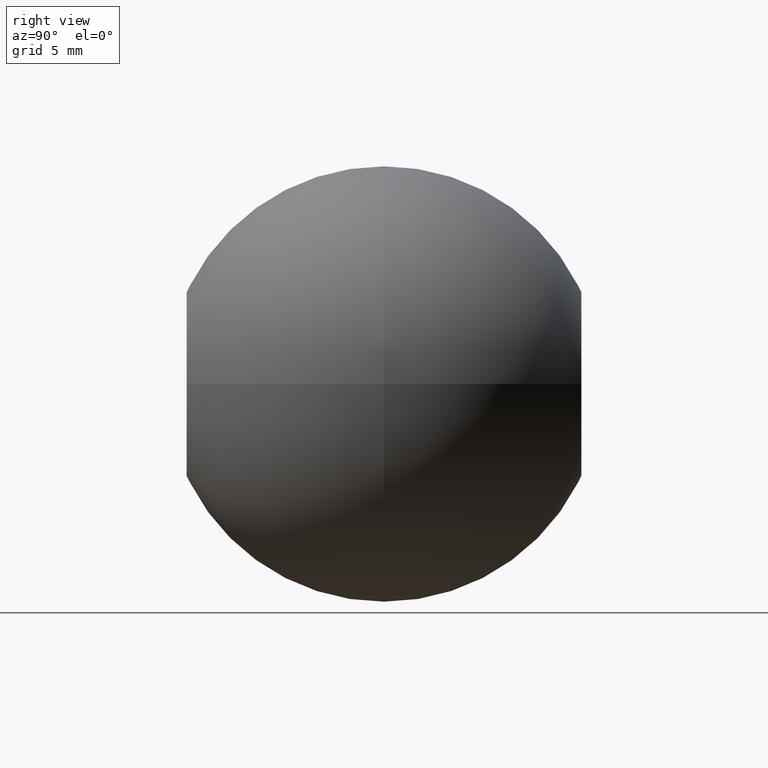
[diagram: clean part render]
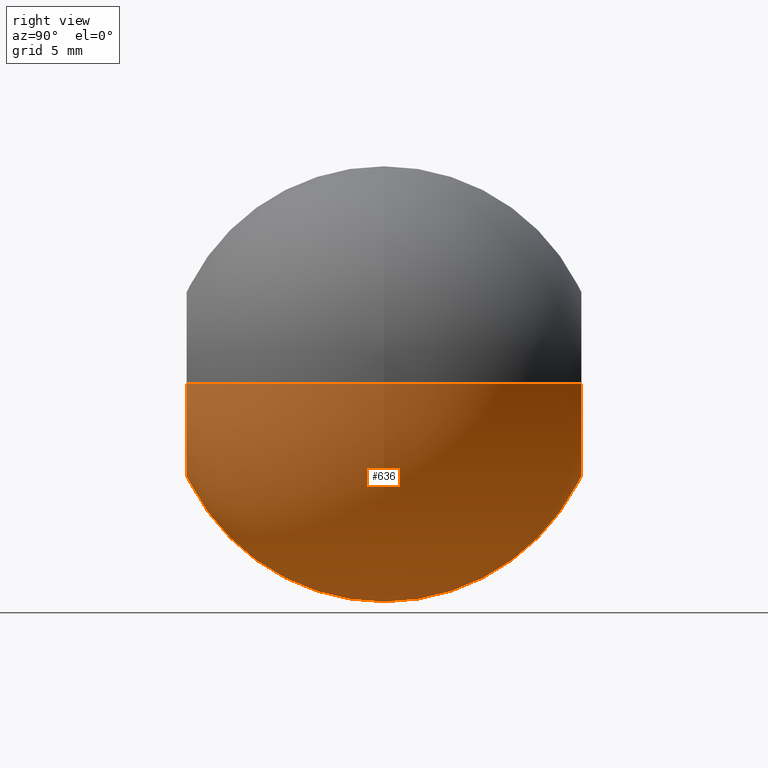
[diagram: same view with one face highlighted and labeled with its STEP entity id]
A machine part, right view. The second image highlights one B-rep face of the part: STEP entity #636.
In plain terms, the highlighted spherical surface has radius 15 mm.
Its self-contained STEP definition (entity closure, byte-faithful):
#130 = DIRECTION ( 'NONE',  ( 0.0000000000000000000, 1.000000000000000000, 0.0000000000000000000 ) ) ;
#188 = EDGE_CURVE ( 'NONE', #11695, #10987, #1803, .T. ) ;
#251 = CARTESIAN_POINT ( 'NONE',  ( 0.0000000000000000000, 13.60064379610488300, 0.0000000000000000000 ) ) ;
#308 = CARTESIAN_POINT ( 'NONE',  ( 0.0000000000000000000, 0.0000000000000000000, 0.0000000000000000000 ) ) ;
#625 = VERTEX_POINT ( 'NONE', #3176 ) ;
#636 = ADVANCED_FACE ( 'NONE', ( #7690 ), #5486, .T. ) ;
#1018 = CARTESIAN_POINT ( 'NONE',  ( 1.836970198721029600E-015, -13.60064379610489000, -6.326332929231087500 ) ) ;
#1170 = DIRECTION ( 'NONE',  ( 0.0000000000000000000, 0.0000000000000000000, -1.000000000000000000 ) ) ;
#1218 = CARTESIAN_POINT ( 'NONE',  ( 0.0000000000000000000, 0.0000000000000000000, 0.0000000000000000000 ) ) ;
#1309 = EDGE_CURVE ( 'NONE', #2614, #3215, #7981, .T. ) ;
#1325 = CARTESIAN_POINT ( 'NONE',  ( 0.0000000000000000000, 13.60064379610488300, 0.0000000000000000000 ) ) ;
#1330 = CARTESIAN_POINT ( 'NONE',  ( 0.0000000000000000000, 0.0000000000000000000, 0.0000000000000000000 ) ) ;
#1371 = DIRECTION ( 'NONE',  ( -1.000000000000000000, 0.0000000000000000000, -1.224646799147353000E-016 ) ) ;
#1768 = EDGE_CURVE ( 'NONE', #625, #10987, #6068, .T. ) ;
#1803 = CIRCLE ( 'NONE', #2482, 15.00000000000000000 ) ;
#1968 = DIRECTION ( 'NONE',  ( 0.0000000000000000000, 1.000000000000000000, 0.0000000000000000000 ) ) ;
#2060 = CARTESIAN_POINT ( 'NONE',  ( 0.0000000000000000000, -13.60064379610489000, 0.0000000000000000000 ) ) ;
#2378 = ORIENTED_EDGE ( 'NONE', *, *, #1768, .T. ) ;
#2482 = AXIS2_PLACEMENT_3D ( 'NONE', #1218, #4071, #4984 ) ;
#2614 = VERTEX_POINT ( 'NONE', #1018 ) ;
#3080 = VERTEX_POINT ( 'NONE', #10716 ) ;
#3176 = CARTESIAN_POINT ( 'NONE',  ( 2.611722535933366500E-015, 13.60064379610488300, -6.326332929231102600 ) ) ;
#3215 = VERTEX_POINT ( 'NONE', #4504 ) ;
#3288 = AXIS2_PLACEMENT_3D ( 'NONE', #6755, #130, #7627 ) ;
#4071 = DIRECTION ( 'NONE',  ( 0.0000000000000000000, 0.0000000000000000000, 1.000000000000000000 ) ) ;
#4504 = CARTESIAN_POINT ( 'NONE',  ( -6.326332929231085700, -13.60064379610489000, -7.747523372123356500E-016 ) ) ;
#4984 = DIRECTION ( 'NONE',  ( 1.000000000000000000, 0.0000000000000000000, 0.0000000000000000000 ) ) ;
#5002 = EDGE_CURVE ( 'NONE', #11695, #2614, #9802, .T. ) ;
#5247 = DIRECTION ( 'NONE',  ( 0.0000000000000000000, 0.0000000000000000000, -1.000000000000000000 ) ) ;
#5486 = SPHERICAL_SURFACE ( 'NONE', #9174, 15.00000000000000000 ) ;
#6068 = CIRCLE ( 'NONE', #7429, 6.326332929231102600 ) ;
#6071 = DIRECTION ( 'NONE',  ( 0.0000000000000000000, 0.0000000000000000000, -1.000000000000000000 ) ) ;
#6731 = ORIENTED_EDGE ( 'NONE', *, *, #1309, .T. ) ;
#6755 = CARTESIAN_POINT ( 'NONE',  ( 0.0000000000000000000, -13.60064379610489000, 0.0000000000000000000 ) ) ;
#6876 = ORIENTED_EDGE ( 'NONE', *, *, #5002, .T. ) ;
#6949 = ORIENTED_EDGE ( 'NONE', *, *, #7763, .T. ) ;
#6973 = DIRECTION ( 'NONE',  ( -0.0000000000000000000, -1.000000000000000000, -0.0000000000000000000 ) ) ;
#7429 = AXIS2_PLACEMENT_3D ( 'NONE', #1325, #6973, #5247 ) ;
#7622 = CIRCLE ( 'NONE', #11211, 15.00000000000000000 ) ;
#7627 = DIRECTION ( 'NONE',  ( 0.0000000000000000000, 0.0000000000000000000, 1.000000000000000000 ) ) ;
#7676 = CIRCLE ( 'NONE', #9450, 6.326332929231102600 ) ;
#7690 = FACE_OUTER_BOUND ( 'NONE', #11656, .T. ) ;
#7763 = EDGE_CURVE ( 'NONE', #3080, #625, #7676, .T. ) ;
#7805 = DIRECTION ( 'NONE',  ( 1.224646799147353200E-016, 0.0000000000000000000, -1.000000000000000000 ) ) ;
#7981 = CIRCLE ( 'NONE', #3288, 6.326332929231085700 ) ;
#9174 = AXIS2_PLACEMENT_3D ( 'NONE', #308, #6071, #9800 ) ;
#9450 = AXIS2_PLACEMENT_3D ( 'NONE', #251, #11648, #1170 ) ;
#9645 = DIRECTION ( 'NONE',  ( 0.0000000000000000000, 0.0000000000000000000, 1.000000000000000000 ) ) ;
#9800 = DIRECTION ( 'NONE',  ( 1.000000000000000000, 0.0000000000000000000, 0.0000000000000000000 ) ) ;
#9802 = CIRCLE ( 'NONE', #11706, 6.326332929231085700 ) ;
#10013 = ORIENTED_EDGE ( 'NONE', *, *, #11989, .T. ) ;
#10590 = ORIENTED_EDGE ( 'NONE', *, *, #188, .F. ) ;
#10716 = CARTESIAN_POINT ( 'NONE',  ( -6.326332929231102600, 13.60064379610488300, -7.747523372123367300E-016 ) ) ;
#10987 = VERTEX_POINT ( 'NONE', #11418 ) ;
#11211 = AXIS2_PLACEMENT_3D ( 'NONE', #1330, #7805, #1371 ) ;
#11418 = CARTESIAN_POINT ( 'NONE',  ( 6.326332929231102600, 13.60064379610488300, 0.0000000000000000000 ) ) ;
#11453 = CARTESIAN_POINT ( 'NONE',  ( 6.326332929231085700, -13.60064379610489000, 0.0000000000000000000 ) ) ;
#11648 = DIRECTION ( 'NONE',  ( -0.0000000000000000000, -1.000000000000000000, -0.0000000000000000000 ) ) ;
#11656 = EDGE_LOOP ( 'NONE', ( #6876, #6731, #10013, #6949, #2378, #10590 ) ) ;
#11695 = VERTEX_POINT ( 'NONE', #11453 ) ;
#11706 = AXIS2_PLACEMENT_3D ( 'NONE', #2060, #1968, #9645 ) ;
#11989 = EDGE_CURVE ( 'NONE', #3215, #3080, #7622, .T. ) ;